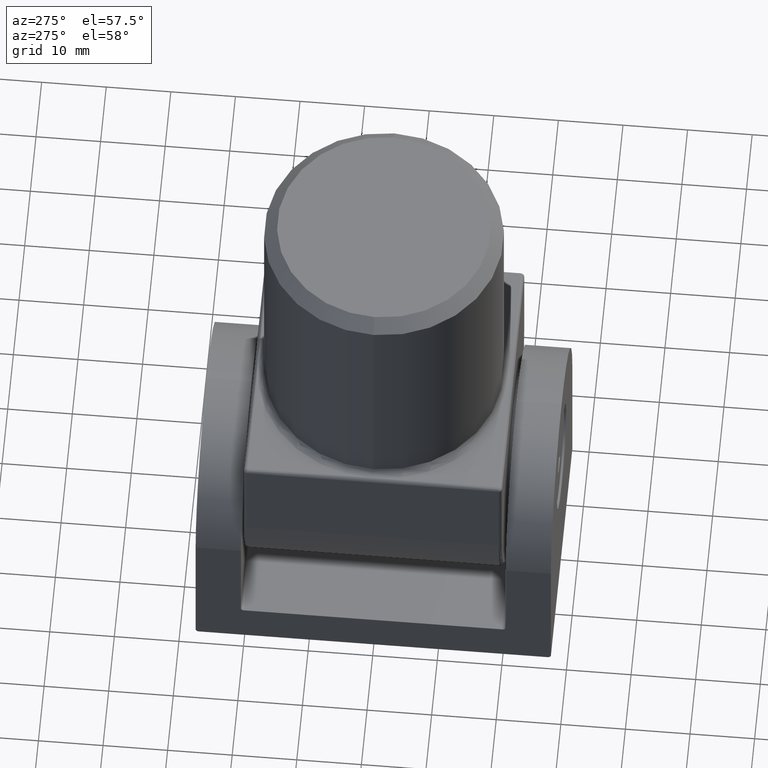
[diagram: clean part render]
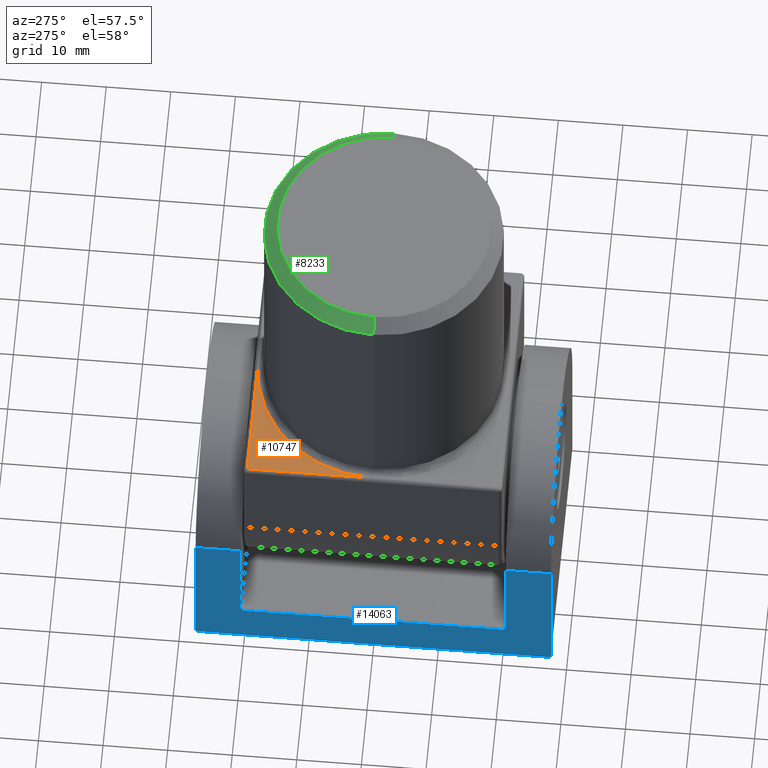
[diagram: same view with three faces highlighted in distinct colors, each labeled with its STEP entity id]
A machine part, auxiliary view with three faces highlighted in distinct colors.
Their STEP definitions:

[orange] entity #10747 — the highlighted planar face has unit normal (0, 0, -1).
#457 = CARTESIAN_POINT ( 'NONE',  ( 0.000000000000000000, 0.000000000000000000, 0.000000000000000000 ) ) ;
#781 = EDGE_CURVE ( 'NONE', #11761, #7505, #15976, .T. ) ;
#819 = AXIS2_PLACEMENT_3D ( 'NONE', #7225, #8794, #17370 ) ;
#2051 = DIRECTION ( 'NONE',  ( 0.000000000000000000, -1.000000000000000000, 0.000000000000000000 ) ) ;
#2657 = DIRECTION ( 'NONE',  ( -1.000000000000000000, -0.000000000000000000, -0.000000000000000000 ) ) ;
#2996 = CARTESIAN_POINT ( 'NONE',  ( -19.50000000000000000, 19.50000000000000000, 0.000000000000000000 ) ) ;
#3701 = CARTESIAN_POINT ( 'NONE',  ( 0.000000000000000000, 19.50000000000000000, 0.000000000000000000 ) ) ;
#4048 = VERTEX_POINT ( 'NONE', #14614 ) ;
#4674 = EDGE_LOOP ( 'NONE', ( #17591, #18703, #14335 ) ) ;
#4878 = VECTOR ( 'NONE', #2657, 1000.000000000000000 ) ;
#7225 = CARTESIAN_POINT ( 'NONE',  ( -20.00000000000000000, 20.00000000000000000, 0.000000000000000000 ) ) ;
#7505 = VERTEX_POINT ( 'NONE', #2996 ) ;
#7626 = EDGE_CURVE ( 'NONE', #7505, #4048, #12878, .T. ) ;
#8794 = DIRECTION ( 'NONE',  ( 0.000000000000000000, 0.000000000000000000, -1.000000000000000000 ) ) ;
#8889 = EDGE_CURVE ( 'NONE', #4048, #11761, #12837, .T. ) ;
#9353 = CARTESIAN_POINT ( 'NONE',  ( -19.50000000000000000, 20.00000000000000000, 0.000000000000000000 ) ) ;
#10747 = ADVANCED_FACE ( 'NONE', ( #13467 ), #11650, .F. ) ;
#11650 = PLANE ( 'NONE',  #819 ) ;
#11761 = VERTEX_POINT ( 'NONE', #3701 ) ;
#11963 = VECTOR ( 'NONE', #2051, 1000.000000000000000 ) ;
#12824 = CARTESIAN_POINT ( 'NONE',  ( -20.00000000000000000, 19.50000000000000000, 0.000000000000000000 ) ) ;
#12837 = CIRCLE ( 'NONE', #12913, 19.50000000000000000 ) ;
#12878 = LINE ( 'NONE', #9353, #11963 ) ;
#12913 = AXIS2_PLACEMENT_3D ( 'NONE', #457, #13389, #14904 ) ;
#13389 = DIRECTION ( 'NONE',  ( 0.000000000000000000, 0.000000000000000000, -1.000000000000000000 ) ) ;
#13467 = FACE_OUTER_BOUND ( 'NONE', #4674, .T. ) ;
#14335 = ORIENTED_EDGE ( 'NONE', *, *, #8889, .T. ) ;
#14614 = CARTESIAN_POINT ( 'NONE',  ( -19.50000000000000000, 0.000000000000000000, 0.000000000000000000 ) ) ;
#14904 = DIRECTION ( 'NONE',  ( -1.000000000000000000, 0.000000000000000000, 0.000000000000000000 ) ) ;
#15976 = LINE ( 'NONE', #12824, #4878 ) ;
#17370 = DIRECTION ( 'NONE',  ( -1.000000000000000000, 0.000000000000000000, -0.000000000000000000 ) ) ;
#17591 = ORIENTED_EDGE ( 'NONE', *, *, #781, .T. ) ;
#18703 = ORIENTED_EDGE ( 'NONE', *, *, #7626, .T. ) ;

[blue] entity #14063 — the highlighted planar face has unit normal (1, 0, 0).
#198 = EDGE_CURVE ( 'NONE', #674, #5374, #1737, .T. ) ;
#355 = AXIS2_PLACEMENT_3D ( 'NONE', #14129, #7081, #12721 ) ;
#425 = CARTESIAN_POINT ( 'NONE',  ( -19.00000000000000000, 27.00000000000000000, 0.4999999999999935052 ) ) ;
#527 = VERTEX_POINT ( 'NONE', #16568 ) ;
#674 = VERTEX_POINT ( 'NONE', #5359 ) ;
#928 = EDGE_CURVE ( 'NONE', #10617, #15549, #16651, .T. ) ;
#1360 = DIRECTION ( 'NONE',  ( 1.000000000000000000, 0.000000000000000000, 0.000000000000000000 ) ) ;
#1426 = AXIS2_PLACEMENT_3D ( 'NONE', #6432, #3545, #6374 ) ;
#1737 = LINE ( 'NONE', #13022, #3305 ) ;
#1895 = ORIENTED_EDGE ( 'NONE', *, *, #2487, .T. ) ;
#2072 = EDGE_CURVE ( 'NONE', #5456, #4687, #14567, .T. ) ;
#2082 = CARTESIAN_POINT ( 'NONE',  ( -19.00000000000000000, -20.50000000000000000, 6.999999999999991118 ) ) ;
#2101 = VERTEX_POINT ( 'NONE', #6670 ) ;
#2487 = EDGE_CURVE ( 'NONE', #8466, #4687, #14346, .T. ) ;
#2500 = VERTEX_POINT ( 'NONE', #11780 ) ;
#2700 = EDGE_CURVE ( 'NONE', #14698, #2500, #12064, .T. ) ;
#2717 = ORIENTED_EDGE ( 'NONE', *, *, #7013, .T. ) ;
#2778 = LINE ( 'NONE', #15334, #15210 ) ;
#3305 = VECTOR ( 'NONE', #10236, 1000.000000000000000 ) ;
#3307 = CARTESIAN_POINT ( 'NONE',  ( -19.00000000000000000, -27.00000000000000000, 0.4999999999999998890 ) ) ;
#3389 = CARTESIAN_POINT ( 'NONE',  ( -19.00000000000000000, 0.000000000000000000, 23.99999999999999645 ) ) ;
#3477 = LINE ( 'NONE', #15665, #6848 ) ;
#3545 = DIRECTION ( 'NONE',  ( 1.000000000000000000, 0.000000000000000000, 0.000000000000000000 ) ) ;
#3770 = EDGE_CURVE ( 'NONE', #8466, #2101, #2778, .T. ) ;
#3888 = CARTESIAN_POINT ( 'NONE',  ( -19.00000000000000000, -27.50000000000000000, 23.99999999999999645 ) ) ;
#3941 = ORIENTED_EDGE ( 'NONE', *, *, #12895, .T. ) ;
#4373 = EDGE_CURVE ( 'NONE', #674, #527, #8166, .T. ) ;
#4514 = CARTESIAN_POINT ( 'NONE',  ( -19.00000000000000000, 0.000000000000000000, 23.99999999999999645 ) ) ;
#4687 = VERTEX_POINT ( 'NONE', #10988 ) ;
#5150 = DIRECTION ( 'NONE',  ( -0.000000000000000000, -0.000000000000000000, -1.000000000000000000 ) ) ;
#5276 = DIRECTION ( 'NONE',  ( -1.000000000000000000, -0.000000000000000000, -0.000000000000000000 ) ) ;
#5359 = CARTESIAN_POINT ( 'NONE',  ( -19.00000000000000000, 20.50000000000000000, 23.99999999999999645 ) ) ;
#5374 = VERTEX_POINT ( 'NONE', #13792 ) ;
#5456 = VERTEX_POINT ( 'NONE', #15493 ) ;
#5462 = DIRECTION ( 'NONE',  ( 0.000000000000000000, -1.000000000000000000, 0.000000000000000000 ) ) ;
#5569 = DIRECTION ( 'NONE',  ( 0.000000000000000000, 0.000000000000000000, -1.000000000000000000 ) ) ;
#5605 = CIRCLE ( 'NONE', #5725, 0.5000000000000000000 ) ;
#5725 = AXIS2_PLACEMENT_3D ( 'NONE', #3307, #5276, #16345 ) ;
#6374 = DIRECTION ( 'NONE',  ( 0.000000000000000000, 0.000000000000000000, -1.000000000000000000 ) ) ;
#6432 = CARTESIAN_POINT ( 'NONE',  ( -19.00000000000000000, 20.00000000000000000, 7.499999999999991118 ) ) ;
#6670 = CARTESIAN_POINT ( 'NONE',  ( -19.00000000000000000, -27.50000000000000000, 0.4999999999999998890 ) ) ;
#6848 = VECTOR ( 'NONE', #12631, 1000.000000000000000 ) ;
#6950 = CARTESIAN_POINT ( 'NONE',  ( -19.00000000000000000, 27.50000000000000000, -8.962636856663090566E-15 ) ) ;
#7013 = EDGE_CURVE ( 'NONE', #7164, #2101, #5605, .T. ) ;
#7081 = DIRECTION ( 'NONE',  ( 1.000000000000000000, 0.000000000000000000, 0.000000000000000000 ) ) ;
#7164 = VERTEX_POINT ( 'NONE', #16925 ) ;
#7616 = LINE ( 'NONE', #6950, #10583 ) ;
#7875 = EDGE_CURVE ( 'NONE', #7164, #15549, #7616, .T. ) ;
#8166 = LINE ( 'NONE', #3389, #12247 ) ;
#8466 = VERTEX_POINT ( 'NONE', #3888 ) ;
#9245 = DIRECTION ( 'NONE',  ( -0.000000000000000000, 1.000000000000000000, -0.000000000000000000 ) ) ;
#9314 = DIRECTION ( 'NONE',  ( -0.000000000000000000, 1.000000000000000000, -0.000000000000000000 ) ) ;
#9351 = VECTOR ( 'NONE', #13456, 1000.000000000000000 ) ;
#9438 = FACE_OUTER_BOUND ( 'NONE', #10097, .T. ) ;
#9629 = CARTESIAN_POINT ( 'NONE',  ( -19.00000000000000000, 20.50000000000000000, 6.999999999999991118 ) ) ;
#9656 = AXIS2_PLACEMENT_3D ( 'NONE', #15757, #1360, #5569 ) ;
#9850 = DIRECTION ( 'NONE',  ( -0.000000000000000000, 1.000000000000000000, -1.629570337575107506E-16 ) ) ;
#10097 = EDGE_LOOP ( 'NONE', ( #15901, #2717, #10668, #1895, #13029, #11497, #14377, #3941, #11020, #12309, #12863, #12801 ) ) ;
#10236 = DIRECTION ( 'NONE',  ( 0.000000000000000000, 0.000000000000000000, -1.000000000000000000 ) ) ;
#10583 = VECTOR ( 'NONE', #9850, 1000.000000000000000 ) ;
#10617 = VERTEX_POINT ( 'NONE', #11749 ) ;
#10668 = ORIENTED_EDGE ( 'NONE', *, *, #3770, .F. ) ;
#10823 = AXIS2_PLACEMENT_3D ( 'NONE', #425, #14753, #11896 ) ;
#10988 = CARTESIAN_POINT ( 'NONE',  ( -19.00000000000000000, -20.50000000000000355, 23.99999999999999645 ) ) ;
#11020 = ORIENTED_EDGE ( 'NONE', *, *, #198, .F. ) ;
#11360 = CARTESIAN_POINT ( 'NONE',  ( -19.00000000000000000, 27.00000000000000000, -8.881158339784333749E-15 ) ) ;
#11497 = ORIENTED_EDGE ( 'NONE', *, *, #14070, .T. ) ;
#11607 = VECTOR ( 'NONE', #5462, 1000.000000000000000 ) ;
#11749 = CARTESIAN_POINT ( 'NONE',  ( -19.00000000000000000, 27.50000000000000000, 0.4999999999999935052 ) ) ;
#11780 = CARTESIAN_POINT ( 'NONE',  ( -19.00000000000000000, -20.00000000000000000, 6.999999999999991118 ) ) ;
#11896 = DIRECTION ( 'NONE',  ( 0.000000000000000000, 0.000000000000000000, -1.000000000000000000 ) ) ;
#12064 = LINE ( 'NONE', #9629, #11607 ) ;
#12247 = VECTOR ( 'NONE', #9245, 1000.000000000000000 ) ;
#12309 = ORIENTED_EDGE ( 'NONE', *, *, #4373, .T. ) ;
#12631 = DIRECTION ( 'NONE',  ( -0.000000000000000000, -0.000000000000000000, 1.000000000000000000 ) ) ;
#12721 = DIRECTION ( 'NONE',  ( 0.000000000000000000, 0.000000000000000000, -1.000000000000000000 ) ) ;
#12801 = ORIENTED_EDGE ( 'NONE', *, *, #928, .T. ) ;
#12863 = ORIENTED_EDGE ( 'NONE', *, *, #18083, .F. ) ;
#12895 = EDGE_CURVE ( 'NONE', #14698, #5374, #18361, .T. ) ;
#13022 = CARTESIAN_POINT ( 'NONE',  ( -19.00000000000000000, 20.50000000000000000, 43.00000000000000000 ) ) ;
#13029 = ORIENTED_EDGE ( 'NONE', *, *, #2072, .F. ) ;
#13456 = DIRECTION ( 'NONE',  ( 0.000000000000000000, -1.927470528863118802E-16, 1.000000000000000000 ) ) ;
#13755 = CIRCLE ( 'NONE', #9656, 0.5000000000000004441 ) ;
#13792 = CARTESIAN_POINT ( 'NONE',  ( -19.00000000000000000, 20.50000000000000000, 7.499999999999992895 ) ) ;
#14063 = ADVANCED_FACE ( 'NONE', ( #9438 ), #18586, .F. ) ;
#14070 = EDGE_CURVE ( 'NONE', #5456, #2500, #13755, .T. ) ;
#14129 = CARTESIAN_POINT ( 'NONE',  ( -19.00000000000000000, 0.000000000000000000, 0.000000000000000000 ) ) ;
#14339 = CARTESIAN_POINT ( 'NONE',  ( -19.00000000000000000, 20.00000000000000000, 6.999999999999991118 ) ) ;
#14346 = LINE ( 'NONE', #4514, #17746 ) ;
#14377 = ORIENTED_EDGE ( 'NONE', *, *, #2700, .F. ) ;
#14567 = LINE ( 'NONE', #2082, #9351 ) ;
#14698 = VERTEX_POINT ( 'NONE', #14339 ) ;
#14753 = DIRECTION ( 'NONE',  ( -1.000000000000000000, -0.000000000000000000, -0.000000000000000000 ) ) ;
#15210 = VECTOR ( 'NONE', #5150, 1000.000000000000000 ) ;
#15334 = CARTESIAN_POINT ( 'NONE',  ( -19.00000000000000000, -27.50000000000000000, 0.000000000000000000 ) ) ;
#15493 = CARTESIAN_POINT ( 'NONE',  ( -19.00000000000000000, -20.50000000000000000, 7.499999999999991118 ) ) ;
#15549 = VERTEX_POINT ( 'NONE', #11360 ) ;
#15665 = CARTESIAN_POINT ( 'NONE',  ( -19.00000000000000000, 27.50000000000000000, 43.00000000000000000 ) ) ;
#15757 = CARTESIAN_POINT ( 'NONE',  ( -19.00000000000000000, -20.00000000000000000, 7.499999999999991118 ) ) ;
#15901 = ORIENTED_EDGE ( 'NONE', *, *, #7875, .F. ) ;
#16345 = DIRECTION ( 'NONE',  ( 0.000000000000000000, 0.000000000000000000, -1.000000000000000000 ) ) ;
#16568 = CARTESIAN_POINT ( 'NONE',  ( -19.00000000000000000, 27.50000000000000000, 23.99999999999999645 ) ) ;
#16651 = CIRCLE ( 'NONE', #10823, 0.5000000000000000000 ) ;
#16925 = CARTESIAN_POINT ( 'NONE',  ( -19.00000000000000000, -27.00000000000000000, -8.147851687875413036E-17 ) ) ;
#17746 = VECTOR ( 'NONE', #9314, 1000.000000000000000 ) ;
#18083 = EDGE_CURVE ( 'NONE', #10617, #527, #3477, .T. ) ;
#18361 = CIRCLE ( 'NONE', #1426, 0.5000000000000004441 ) ;
#18586 = PLANE ( 'NONE',  #355 ) ;

[green] entity #8233 — the highlighted conical surface has half-angle 45 deg.
#187 = AXIS2_PLACEMENT_3D ( 'NONE', #15284, #5235, #3847 ) ;
#195 = ORIENTED_EDGE ( 'NONE', *, *, #12370, .F. ) ;
#420 = CARTESIAN_POINT ( 'NONE',  ( 16.49999999999997158, 2.020667218593129550E-15, 41.50000000000000000 ) ) ;
#529 = DIRECTION ( 'NONE',  ( 0.000000000000000000, 0.000000000000000000, 1.000000000000000000 ) ) ;
#948 = AXIS2_PLACEMENT_3D ( 'NONE', #9272, #529, #6175 ) ;
#1720 = ORIENTED_EDGE ( 'NONE', *, *, #11008, .F. ) ;
#2518 = ORIENTED_EDGE ( 'NONE', *, *, #7597, .T. ) ;
#2548 = CARTESIAN_POINT ( 'NONE',  ( 18.50000000000000000, 2.265596578422603396E-15, 39.49999999999996447 ) ) ;
#3564 = CARTESIAN_POINT ( 'NONE',  ( -16.49999999999997158, 0.000000000000000000, 41.50000000000000000 ) ) ;
#3582 = ORIENTED_EDGE ( 'NONE', *, *, #13790, .F. ) ;
#3847 = DIRECTION ( 'NONE',  ( -1.000000000000000000, 0.000000000000000000, 0.000000000000000000 ) ) ;
#4138 = EDGE_LOOP ( 'NONE', ( #1720, #2518, #195, #3582 ) ) ;
#4405 = CIRCLE ( 'NONE', #948, 16.49999999999997158 ) ;
#4999 = DIRECTION ( 'NONE',  ( 0.7071067811865456854, 8.659560562354909439E-17, -0.7071067811865493491 ) ) ;
#5235 = DIRECTION ( 'NONE',  ( 0.000000000000000000, 0.000000000000000000, -1.000000000000000000 ) ) ;
#5532 = AXIS2_PLACEMENT_3D ( 'NONE', #17940, #18002, #15144 ) ;
#6175 = DIRECTION ( 'NONE',  ( 1.000000000000000000, 0.000000000000000000, 0.000000000000000000 ) ) ;
#7597 = EDGE_CURVE ( 'NONE', #9668, #15474, #18335, .T. ) ;
#7878 = CIRCLE ( 'NONE', #5532, 18.50000000000000000 ) ;
#8233 = ADVANCED_FACE ( 'NONE', ( #8515 ), #14429, .T. ) ;
#8515 = FACE_OUTER_BOUND ( 'NONE', #4138, .T. ) ;
#8958 = VERTEX_POINT ( 'NONE', #13334 ) ;
#9101 = DIRECTION ( 'NONE',  ( -0.7071067811865456854, 0.000000000000000000, -0.7071067811865493491 ) ) ;
#9108 = CARTESIAN_POINT ( 'NONE',  ( 16.49999999999997158, 2.143131898507866276E-15, 41.50000000000000000 ) ) ;
#9272 = CARTESIAN_POINT ( 'NONE',  ( 0.000000000000000000, 0.000000000000000000, 41.50000000000000000 ) ) ;
#9668 = VERTEX_POINT ( 'NONE', #9108 ) ;
#11008 = EDGE_CURVE ( 'NONE', #9668, #8958, #4405, .T. ) ;
#11882 = CARTESIAN_POINT ( 'NONE',  ( -18.50000000000000000, 0.000000000000000000, 39.49999999999996447 ) ) ;
#12370 = EDGE_CURVE ( 'NONE', #12834, #15474, #7878, .T. ) ;
#12834 = VERTEX_POINT ( 'NONE', #11882 ) ;
#13334 = CARTESIAN_POINT ( 'NONE',  ( -16.49999999999997158, 0.000000000000000000, 41.50000000000000000 ) ) ;
#13775 = VECTOR ( 'NONE', #9101, 1000.000000000000000 ) ;
#13790 = EDGE_CURVE ( 'NONE', #8958, #12834, #15550, .T. ) ;
#14429 = CONICAL_SURFACE ( 'NONE', #187, 16.49999999999997158, 0.7853981633974457255 ) ;
#15144 = DIRECTION ( 'NONE',  ( 1.000000000000000000, 0.000000000000000000, 0.000000000000000000 ) ) ;
#15284 = CARTESIAN_POINT ( 'NONE',  ( 0.000000000000000000, 0.000000000000000000, 41.50000000000000000 ) ) ;
#15474 = VERTEX_POINT ( 'NONE', #2548 ) ;
#15550 = LINE ( 'NONE', #3564, #13775 ) ;
#15815 = VECTOR ( 'NONE', #4999, 1000.000000000000000 ) ;
#17940 = CARTESIAN_POINT ( 'NONE',  ( 0.000000000000000000, 0.000000000000000000, 39.49999999999996447 ) ) ;
#18002 = DIRECTION ( 'NONE',  ( 0.000000000000000000, 0.000000000000000000, -1.000000000000000000 ) ) ;
#18335 = LINE ( 'NONE', #420, #15815 ) ;